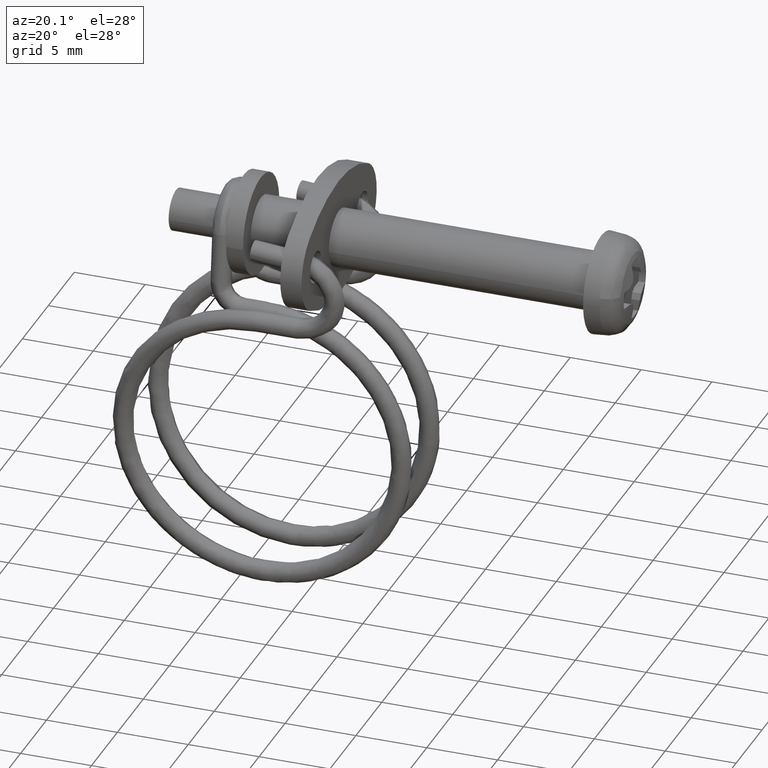
[diagram: clean part render]
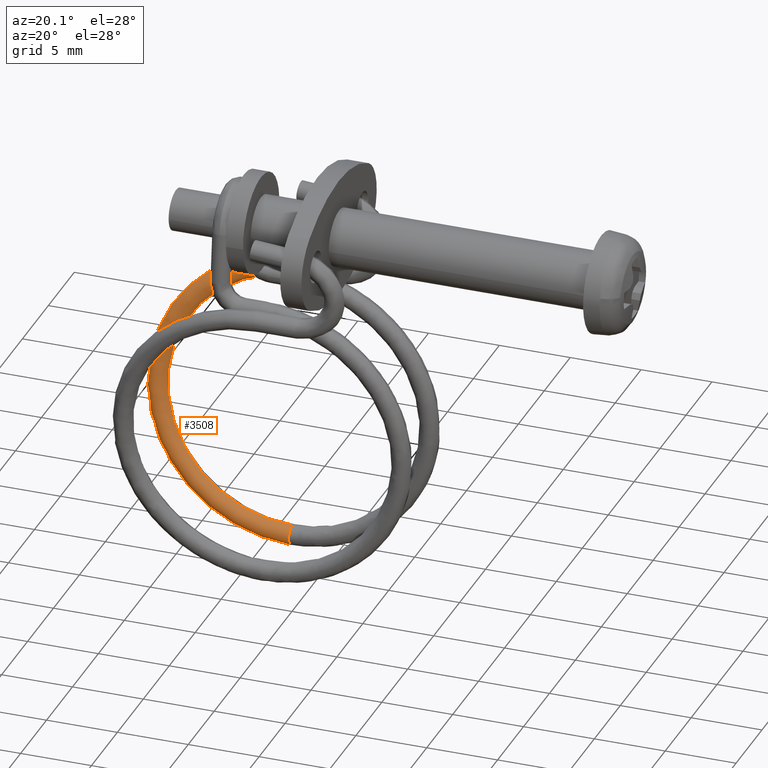
[diagram: same view with one face highlighted and labeled with its STEP entity id]
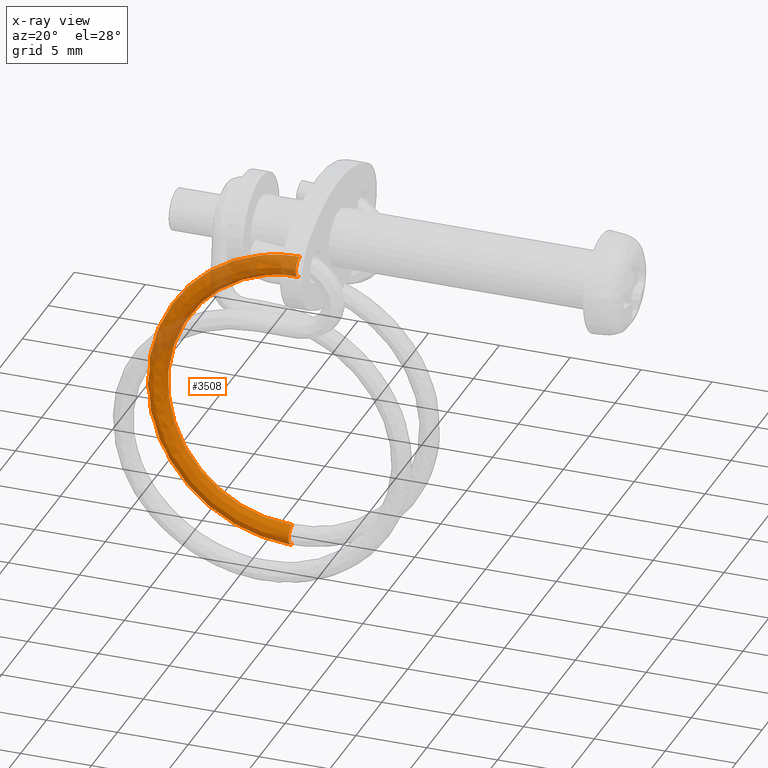
[diagram: x-ray of the same camera — body ghosted, the highlighted face saturated]
A machine part, auxiliary view. The second image highlights one B-rep face of the part: STEP entity #3508.
The next image is the same camera in x-ray: the body ghosted, the highlighted face saturated — about 25% of this face is hidden behind the body in this view.
In plain terms, the highlighted face is a freeform B-spline surface patch.
Its self-contained STEP definition (entity closure, byte-faithful):
#3210=CARTESIAN_POINT('',(-22.799999999961098,4.200507506892457,-4.357253119035725));
#3211=VERTEX_POINT('',#3210);
#3223=CARTESIAN_POINT('',(-22.799999999961098,3.414707688018117,-4.907394590690714));
#3224=VERTEX_POINT('',#3223);
#3225=CARTESIAN_POINT('',(-22.799999999961098,4.200507506892457,-4.357253119035725));
#3226=CARTESIAN_POINT('',(-22.799999999961098,4.019143087463241,-4.330939534108753));
#3227=CARTESIAN_POINT('',(-22.799999999961098,3.828062037694079,-4.379447157678442));
#3228=CARTESIAN_POINT('',(-22.799999999961098,3.545782875085731,-4.590185864396567));
#3229=CARTESIAN_POINT('',(-22.799999999961098,3.449508269579495,-4.742126870311785));
#3230=CARTESIAN_POINT('',(-22.799999999961098,3.414707688018117,-4.907394590690714));
#3231=B_SPLINE_CURVE_WITH_KNOTS('',3,(#3225,#3226,#3227,#3228,#3229,#3230),.UNSPECIFIED.,.F.,.U.,(4,2,4),(0.500000000000000,0.625000000000000,0.740274489874447),.UNSPECIFIED.);
#3232=EDGE_CURVE('',#3211,#3224,#3231,.T.);
#3264=CARTESIAN_POINT('',(-22.799999999961098,3.999492493146567,-5.742746880930215));
#3265=VERTEX_POINT('',#3264);
#3266=CARTESIAN_POINT('',(-22.799999999961098,3.414707688018117,-4.907394590690714));
#3267=CARTESIAN_POINT('',(-22.799999999961098,3.411772166697266,-4.921338058045257));
#3268=CARTESIAN_POINT('',(-22.799999999961098,3.409274218002913,-4.935376385066075));
#3269=CARTESIAN_POINT('',(-22.799999999961098,3.380917932652393,-5.130848489790246));
#3270=CARTESIAN_POINT('',(-22.799999999961098,3.429431455537967,-5.321925430378379));
#3271=CARTESIAN_POINT('',(-22.799999999961098,3.648711885636351,-5.615622146051384));
#3272=CARTESIAN_POINT('',(-22.799999999961098,3.818128500642891,-5.716433385892115));
#3273=CARTESIAN_POINT('',(-22.799999999961098,3.999492493146567,-5.742746880930215));
#3274=B_SPLINE_CURVE_WITH_KNOTS('',3,(#3266,#3267,#3268,#3269,#3270,#3271,#3272,#3273),.UNSPECIFIED.,.F.,.U.,(4,2,2,4),(0.740274489874447,0.750000000000000,0.875000000000000,1.0),.UNSPECIFIED.);
#3275=EDGE_CURVE('',#3224,#3265,#3274,.T.);
#3290=CARTESIAN_POINT('',(-22.472283195887300,2.721991249028009,-25.150000000016771));
#3291=CARTESIAN_POINT('',(-22.471662503735679,2.531395143268901,-25.155934153565429));
#3292=CARTESIAN_POINT('',(-22.473628578960572,2.339792722790783,-25.079742772446249));
#3293=CARTESIAN_POINT('',(-22.481353911746599,2.075441167506065,-24.815616350463600));
#3294=CARTESIAN_POINT('',(-22.492536922851780,1.924558832491999,-24.450000000016711));
#3295=CARTESIAN_POINT('',(-22.504406461654369,2.075441167506065,-24.084383649570309));
#3296=CARTESIAN_POINT('',(-22.513334617770131,2.339792747846161,-23.820257202521429));
#3297=CARTESIAN_POINT('',(-22.516172500812360,2.531395214513333,-23.744065818343302));
#3298=CARTESIAN_POINT('',(-22.516419036650468,2.721991355329128,-23.750000000016879));
#3299=CARTESIAN_POINT('',(-22.581522130580179,2.721991249028010,-25.150000000016739));
#3300=CARTESIAN_POINT('',(-22.581108335812431,2.531395143268902,-25.155934153565401));
#3301=CARTESIAN_POINT('',(-22.582419052629032,2.339792722790784,-25.079742772446220));
#3302=CARTESIAN_POINT('',(-22.587569274486381,2.075441167506066,-24.815616350463578));
#3303=CARTESIAN_POINT('',(-22.595024615223171,1.924558832492000,-24.450000000016679));
#3304=CARTESIAN_POINT('',(-22.602937641091572,2.075441167506066,-24.084383649570281));
#3305=CARTESIAN_POINT('',(-22.608889745168739,2.339792747846162,-23.820257202521400));
#3306=CARTESIAN_POINT('',(-22.610781667196900,2.531395214513334,-23.744065818343270));
#3307=CARTESIAN_POINT('',(-22.610946024422290,2.721991355329129,-23.750000000016851));
#3308=CARTESIAN_POINT('',(-22.690761065273069,2.721991249028011,-25.150000000016721));
#3309=CARTESIAN_POINT('',(-22.690554167889189,2.531395143268902,-25.155934153565379));
#3310=CARTESIAN_POINT('',(-22.691209526297492,2.339792722790786,-25.079742772446199));
#3311=CARTESIAN_POINT('',(-22.693784637226159,2.075441167506067,-24.815616350463550));
#3312=CARTESIAN_POINT('',(-22.697512307594561,1.924558832492000,-24.450000000016651));
#3313=CARTESIAN_POINT('',(-22.701468820528749,2.075441167506067,-24.084383649570260));
#3314=CARTESIAN_POINT('',(-22.704444872567340,2.339792747846164,-23.820257202521379));
#3315=CARTESIAN_POINT('',(-22.705390833581419,2.531395214513335,-23.744065818343248));
#3316=CARTESIAN_POINT('',(-22.705473012194119,2.721991355329130,-23.750000000016829));
#3317=CARTESIAN_POINT('',(-25.530972491796419,2.721991249028032,-25.150000000016099));
#3318=CARTESIAN_POINT('',(-25.536144924735069,2.531395143268923,-25.155934153564761));
#3319=CARTESIAN_POINT('',(-25.519760969779949,2.339792722790811,-25.079742772445520));
#3320=CARTESIAN_POINT('',(-25.455383217201231,2.075441167506093,-24.815616350462879));
#3321=CARTESIAN_POINT('',(-25.362191487866731,1.924558832492027,-24.450000000015969));
#3322=CARTESIAN_POINT('',(-25.263278696221018,2.075441167506093,-24.084383649569592));
#3323=CARTESIAN_POINT('',(-25.188877419107889,2.339792747846190,-23.820257202520750));
#3324=CARTESIAN_POINT('',(-25.165228401337320,2.531395214513355,-23.744065818342570));
#3325=CARTESIAN_POINT('',(-25.163173936678412,2.721991355329151,-23.750000000016151));
#3326=CARTESIAN_POINT('',(-28.229553618511989,2.802953258678004,-24.028097866186130));
#3327=CARTESIAN_POINT('',(-28.239830370471172,2.612510602908639,-24.031905641312910));
#3328=CARTESIAN_POINT('',(-28.207278214999270,2.420422121469724,-23.962449676344619));
#3329=CARTESIAN_POINT('',(-28.079370477449160,2.154160678595394,-23.724788839548019));
#3330=CARTESIAN_POINT('',(-27.894214227349948,2.000513634964158,-23.397483451368540));
#3331=CARTESIAN_POINT('',(-27.697691191221740,2.148461535243071,-23.072529982232702));
#3332=CARTESIAN_POINT('',(-27.549868400796989,2.410605861211967,-22.838989774346530));
#3333=CARTESIAN_POINT('',(-27.502881790706979,2.601506735111655,-22.772520461368249));
#3334=CARTESIAN_POINT('',(-27.498799915899021,2.792041926354235,-22.779299229984481));
#3335=CARTESIAN_POINT('',(-31.115472418381540,3.011292118425160,-21.141116523985271));
#3336=CARTESIAN_POINT('',(-31.131193555608188,2.821242501094478,-21.139477909307779));
#3337=CARTESIAN_POINT('',(-31.081396021793591,2.627909049610426,-21.087273672137911));
#3338=CARTESIAN_POINT('',(-30.885725726104258,2.356755724782712,-20.917400342385580));
#3339=CARTESIAN_POINT('',(-30.602477981284441,2.196027307219182,-20.688222564408601));
#3340=CARTESIAN_POINT('',(-30.301841590377041,2.336459106346524,-20.467420782687221));
#3341=CARTESIAN_POINT('',(-30.075705707870611,2.592949891296780,-20.312222500316171));
#3342=CARTESIAN_POINT('',(-30.003826679557580,2.782053743732373,-20.270654770492889));
#3343=CARTESIAN_POINT('',(-29.997582321977202,2.972432822060095,-20.279596818072850));
#3344=CARTESIAN_POINT('',(-31.885123592215660,3.094425583069462,-19.989124228211871));
#3345=CARTESIAN_POINT('',(-31.902294011846511,2.904532591565196,-19.985315227087639));
#3346=CARTESIAN_POINT('',(-31.847905799340680,2.710703019490560,-19.939985803807069));
#3347=CARTESIAN_POINT('',(-31.634197271877930,2.437600279598096,-19.797125797104432));
#3348=CARTESIAN_POINT('',(-31.324837804516552,2.274049934368091,-19.607051873935209));
#3349=CARTESIAN_POINT('',(-30.996486686234778,2.411486567021154,-19.427754541916759));
#3350=CARTESIAN_POINT('',(-30.749504044910069,2.665724415752754,-19.303775518583819));
#3351=CARTESIAN_POINT('',(-30.670998714083400,2.854112155094933,-19.272131070194270));
#3352=CARTESIAN_POINT('',(-30.664178708734479,3.044429022422742,-19.281935184484450));
#3353=CARTESIAN_POINT('',(-32.926695095413727,3.275948925452999,-17.473729340898078));
#3354=CARTESIAN_POINT('',(-32.945825437108489,3.086397505892081,-17.465187128556231));
#3355=CARTESIAN_POINT('',(-32.885229067802399,2.891485986616725,-17.434850402197331));
#3356=CARTESIAN_POINT('',(-32.647126724349391,2.614131933205952,-17.350901454244610));
#3357=CARTESIAN_POINT('',(-32.302455339348818,2.444427485933416,-17.246105802234670));
#3358=CARTESIAN_POINT('',(-31.936624496445571,2.575332214762285,-17.157321994641350));
#3359=CARTESIAN_POINT('',(-31.661449956670658,2.824656826506393,-17.101426398137029));
#3360=CARTESIAN_POINT('',(-31.573983614233970,3.011482855709504,-17.091422790246501));
#3361=CARTESIAN_POINT('',(-31.566385137580649,3.201664052359018,-17.103106912512619));
#3362=CARTESIAN_POINT('',(-33.196601484497457,3.373985776033773,-16.115218697143462));
#3363=CARTESIAN_POINT('',(-33.216238928851404,3.184618646024452,-16.104122758160539));
#3364=CARTESIAN_POINT('',(-33.154036285037968,2.989123379846643,-16.081875096025598));
#3365=CARTESIAN_POINT('',(-32.909622379871237,2.709475599813801,-16.029710645552552));
#3366=CARTESIAN_POINT('',(-32.555814525710232,2.536450807515661,-15.970925488902189));
#3367=CARTESIAN_POINT('',(-32.180286323642797,2.663831354551288,-15.930976771860660));
#3368=CARTESIAN_POINT('',(-31.897817520967141,2.910505109699927,-15.911814473899909));
#3369=CARTESIAN_POINT('',(-31.808032641008150,3.096488543759552,-15.913486827279479));
#3370=CARTESIAN_POINT('',(-31.800232745698811,3.286596541514808,-15.926185277076550));
#3371=CARTESIAN_POINT('',(-33.196601484497457,3.570276364391468,-13.395191972779140));
#3372=CARTESIAN_POINT('',(-33.216238928851404,3.381278201774908,-13.378983199922949));
#3373=CARTESIAN_POINT('',(-33.154036285037968,3.184614211860797,-13.372930709556270));
#3374=CARTESIAN_POINT('',(-32.909622379871237,2.900374145794925,-13.384402222681819));
#3375=CARTESIAN_POINT('',(-32.555814525710232,2.720701667612652,-13.417734998988090));
#3376=CARTESIAN_POINT('',(-32.180286323642797,2.841026425756352,-13.475559356609690));
#3377=CARTESIAN_POINT('',(-31.897817520967141,3.082392882464945,-13.529941051302560));
#3378=CARTESIAN_POINT('',(-31.808032641008150,3.266689350924684,-13.554989928001870));
#3379=CARTESIAN_POINT('',(-31.800232745698811,3.456650796665330,-13.569719170003570));
#3380=CARTESIAN_POINT('',(-32.926695095416271,3.668313214971959,-12.036681329022290));
#3381=CARTESIAN_POINT('',(-32.945825437111402,3.479499341906682,-12.017918829525810));
#3382=CARTESIAN_POINT('',(-32.885229067800587,3.282251605090125,-12.019955403380679));
#3383=CARTESIAN_POINT('',(-32.647126724348439,2.995717812402293,-12.063211413987030));
#3384=CARTESIAN_POINT('',(-32.302455339351432,2.812724989194852,-12.142554685650680));
#3385=CARTESIAN_POINT('',(-31.936624496442828,2.929525565544655,-12.249214133826261));
#3386=CARTESIAN_POINT('',(-31.661449956666559,3.168241165657883,-12.340329127061541));
#3387=CARTESIAN_POINT('',(-31.573983614232301,3.351695038974737,-12.377053965032140));
#3388=CARTESIAN_POINT('',(-31.566385137580038,3.541583285821080,-12.392797534565361));
#3389=CARTESIAN_POINT('',(-31.885123592209411,3.849836557355981,-9.521286441714148));
#3390=CARTESIAN_POINT('',(-31.902294011839899,3.661364256234672,-9.497790730998467));
#3391=CARTESIAN_POINT('',(-31.847905799338829,3.463034572217390,-9.514820001779819));
#3392=CARTESIAN_POINT('',(-31.634197271875198,3.172249466011024,-9.616987071133861));
#3393=CARTESIAN_POINT('',(-31.324837804510299,2.983102540760179,-9.781608613961149));
#3394=CARTESIAN_POINT('',(-30.996486686233808,3.093371213287107,-9.978781586557481));
#3395=CARTESIAN_POINT('',(-30.749504044910459,3.327173576412628,-10.137980006623639));
#3396=CARTESIAN_POINT('',(-30.670998714081371,3.509065739589217,-10.196345685090821));
#3397=CARTESIAN_POINT('',(-30.664178708731370,3.698818315757356,-10.213969262598919));
#3398=CARTESIAN_POINT('',(-31.115472418378939,3.932970022000480,-8.369294145941549));
#3399=CARTESIAN_POINT('',(-31.131193555609830,3.744654346705655,-8.343628048777097));
#3400=CARTESIAN_POINT('',(-31.081396021788041,3.545828542096894,-8.367532133450260));
#3401=CARTESIAN_POINT('',(-30.885725726099860,3.253094020825613,-8.496712525848503));
#3402=CARTESIAN_POINT('',(-30.602477981286640,3.061125167909828,-8.700437923493372));
#3403=CARTESIAN_POINT('',(-30.301841590372661,3.168398673961271,-8.939115345789009));
#3404=CARTESIAN_POINT('',(-30.075705707862859,3.399948100867401,-9.129533024890185));
#3405=CARTESIAN_POINT('',(-30.003826679547441,3.581124150952086,-9.197821984794738));
#3406=CARTESIAN_POINT('',(-29.997582321970949,3.770814516119887,-9.216307629013381));
#3407=CARTESIAN_POINT('',(-28.229553618507261,4.141308881746077,-5.482312803733266));
#3408=CARTESIAN_POINT('',(-28.239830370457920,3.953386244888805,-5.451200316773054));
#3409=CARTESIAN_POINT('',(-28.207278215000461,3.753315470237581,-5.492356129229943));
#3410=CARTESIAN_POINT('',(-28.079370477448069,3.455689067013756,-5.689324028692063));
#3411=CARTESIAN_POINT('',(-27.894214227335599,3.256638840162381,-5.991177036503627));
#3412=CARTESIAN_POINT('',(-27.697691191220638,3.356396245063892,-6.334006146231001));
#3413=CARTESIAN_POINT('',(-27.549868400802580,3.582292130953919,-6.602765750853356));
#3414=CARTESIAN_POINT('',(-27.502881790717289,3.761671159571770,-6.695956293905565));
#3415=CARTESIAN_POINT('',(-27.498799915901561,3.951205411825848,-6.716605217088507));
#3416=CARTESIAN_POINT('',(-25.530972491791541,4.222270891425314,-4.360410669911004));
#3417=CARTESIAN_POINT('',(-25.536144924736590,4.034501704558540,-4.327171804523231));
#3418=CARTESIAN_POINT('',(-25.519760969770619,3.833944868944734,-4.375063033140839));
#3419=CARTESIAN_POINT('',(-25.455383217193660,3.534408578130737,-4.598496517775983));
#3420=CARTESIAN_POINT('',(-25.362191487869080,3.332593642664391,-4.938660487878781));
#3421=CARTESIAN_POINT('',(-25.263278696213501,3.429416612829651,-5.322152478905255));
#3422=CARTESIAN_POINT('',(-25.188877419095320,3.653105244346787,-5.621498322686237));
#3423=CARTESIAN_POINT('',(-25.165228401321201,3.831782680198984,-5.724410936943245));
#3424=CARTESIAN_POINT('',(-25.163173936668159,4.021255982879088,-5.745904447068461));
#3425=CARTESIAN_POINT('',(-22.690761099941149,4.222270891425288,-4.360410669911350));
#3426=CARTESIAN_POINT('',(-22.690554202622689,4.034501704558515,-4.327171804523580));
#3427=CARTESIAN_POINT('',(-22.691209560823410,3.833944868944708,-4.375063033141189));
#3428=CARTESIAN_POINT('',(-22.693784670934662,3.534408578130710,-4.598496517776325));
#3429=CARTESIAN_POINT('',(-22.697512340119481,3.332593642664370,-4.938660487879112));
#3430=CARTESIAN_POINT('',(-22.701468851798250,3.429416612829626,-5.322152478905583));
#3431=CARTESIAN_POINT('',(-22.704444902892430,3.653105244346762,-5.621498322686561));
#3432=CARTESIAN_POINT('',(-22.705390863606400,3.831782680198966,-5.724410936943568));
#3433=CARTESIAN_POINT('',(-22.705473042192779,4.021255982879068,-5.745904447068783));
#3434=CARTESIAN_POINT('',(-22.581522199921199,4.222270891425287,-4.360410669911364));
#3435=CARTESIAN_POINT('',(-22.581108405284279,4.034501704558514,-4.327171804523593));
#3436=CARTESIAN_POINT('',(-22.582419121685710,3.833944868944706,-4.375063033141203));
#3437=CARTESIAN_POINT('',(-22.587569341908221,3.534408578130710,-4.598496517776338));
#3438=CARTESIAN_POINT('',(-22.595024680277859,3.332593642664368,-4.938660487879125));
#3439=CARTESIAN_POINT('',(-22.602937703635408,3.429416612829626,-5.322152478905595));
#3440=CARTESIAN_POINT('',(-22.608889805823772,3.653105244346761,-5.621498322686573));
#3441=CARTESIAN_POINT('',(-22.610781727251702,3.831782680198964,-5.724410936943579));
#3442=CARTESIAN_POINT('',(-22.610946084424459,4.021255982879067,-5.745904447068796));
#3443=CARTESIAN_POINT('',(-22.472283299901250,4.222270891425286,-4.360410669911377));
#3444=CARTESIAN_POINT('',(-22.471662607945870,4.034501704558513,-4.327171804523605));
#3445=CARTESIAN_POINT('',(-22.473628682548028,3.833944868944705,-4.375063033141215));
#3446=CARTESIAN_POINT('',(-22.481354012881781,3.534408578130708,-4.598496517776351));
#3447=CARTESIAN_POINT('',(-22.492537020436231,3.332593642664369,-4.938660487879139));
#3448=CARTESIAN_POINT('',(-22.504406555472581,3.429416612829623,-5.322152478905605));
#3449=CARTESIAN_POINT('',(-22.513334708755099,3.653105244346759,-5.621498322686586));
#3450=CARTESIAN_POINT('',(-22.516172590897000,3.831782680198964,-5.724410936943593));
#3451=CARTESIAN_POINT('',(-22.516419126656150,4.021255982879066,-5.745904447068808));
#3452=B_SPLINE_SURFACE_WITH_KNOTS('',3,3,((#3290,#3299,#3308,#3317,#3326,#3335,#3344,#3353,#3362,#3371,#3380,#3389,#3398,#3407,#3416,#3425,#3434,#3443),(#3291,#3300,#3309,#3318,#3327,#3336,#3345,#3354,#3363,#3372,#3381,#3390,#3399,#3408,#3417,#3426,#3435,#3444),(#3292,#3301,#3310,#3319,#3328,#3337,#3346,#3355,#3364,#3373,#3382,#3391,#3400,#3409,#3418,#3427,#3436,#3445),(#3293,#3302,#3311,#3320,#3329,#3338,#3347,#3356,#3365,#3374,#3383,#3392,#3401,#3410,#3419,#3428,#3437,#3446),(#3294,#3303,#3312,#3321,#3330,#3339,#3348,#3357,#3366,#3375,#3384,#3393,#3402,#3411,#3420,#3429,#3438,#3447),(#3295,#3304,#3313,#3322,#3331,#3340,#3349,#3358,#3367,#3376,#3385,#3394,#3403,#3412,#3421,#3430,#3439,#3448),(#3296,#3305,#3314,#3323,#3332,#3341,#3350,#3359,#3368,#3377,#3386,#3395,#3404,#3413,#3422,#3431,#3440,#3449),(#3297,#3306,#3315,#3324,#3333,#3342,#3351,#3360,#3369,#3378,#3387,#3396,#3405,#3414,#3423,#3432,#3441,#3450),(#3298,#3307,#3316,#3325,#3334,#3343,#3352,#3361,#3370,#3379,#3388,#3397,#3406,#3415,#3424,#3433,#3442,#3451)),.UNSPECIFIED.,.F.,.F.,.U.,(4,2,1,2,4),(4,2,2,2,2,2,2,2,4),(0.0,0.572285295552961,1.122559521522709,1.672833747492458,2.245119149442346),(0.0,0.327716804078659,8.520634279570238,12.617093017315961,16.713551755061680,20.810010492807539,24.906469230553260,33.099386706044662,33.427103406104507),.UNSPECIFIED.);
#3453=CARTESIAN_POINT('',(-22.799999895931261,2.699999999999000,-25.150000000016480));
#3454=VERTEX_POINT('',#3453);
#3455=CARTESIAN_POINT('',(-22.799999895931261,2.699999999999000,-25.150000000016480));
#3456=CARTESIAN_POINT('',(-25.531389417032148,2.699999999999020,-25.150000000016099));
#3457=CARTESIAN_POINT('',(-28.230381978644250,2.780974378523345,-24.027926468927880));
#3458=CARTESIAN_POINT('',(-31.116739624534230,2.989344919231026,-21.140506119130219));
#3459=CARTESIAN_POINT('',(-31.886507618134750,3.072491008738788,-19.988338878820770));
#3460=CARTESIAN_POINT('',(-32.928237101335462,3.254041883613253,-17.472562469846679));
#3461=CARTESIAN_POINT('',(-33.198184365554333,3.352093588898903,-16.113845982324801));
#3462=CARTESIAN_POINT('',(-33.198184365554333,3.548413917964495,-13.393407136722191));
#3463=CARTESIAN_POINT('',(-32.928237101337999,3.646465623249828,-12.034690649198140));
#3464=CARTESIAN_POINT('',(-31.886507618128501,3.828016498124844,-9.518914240229565));
#3465=CARTESIAN_POINT('',(-31.116739624532020,3.911162587632803,-8.366746999920721));
#3466=CARTESIAN_POINT('',(-28.230381978638729,4.119533128338826,-5.479326650116435));
#3467=CARTESIAN_POINT('',(-25.531389417027871,4.200507506892482,-4.357253119035392));
#3468=CARTESIAN_POINT('',(-22.799999999961098,4.200507506892457,-4.357253119035725));
#3469=B_SPLINE_CURVE_WITH_KNOTS('',3,(#3455,#3456,#3457,#3458,#3459,#3460,#3461,#3462,#3463,#3464,#3465,#3466,#3467,#3468),.UNSPECIFIED.,.F.,.U.,(4,2,2,2,2,2,4),(0.740190177905927,0.784525191294644,0.806692697989002,0.828860204683360,0.851027711377719,0.873195218072077,0.917530231460793),.UNSPECIFIED.);
#3470=EDGE_CURVE('',#3454,#3211,#3469,.T.);
#3471=ORIENTED_EDGE('',*,*,#3470,.F.);
#3472=CARTESIAN_POINT('',(-22.800000738930741,2.699999999998998,-23.750000000016460));
#3473=VERTEX_POINT('',#3472);
#3474=CARTESIAN_POINT('',(-22.799999895931261,2.699999999999000,-25.150000000016480));
#3475=CARTESIAN_POINT('',(-22.799999895931261,2.516740428539605,-25.150000000016480));
#3476=CARTESIAN_POINT('',(-22.799999941357591,2.334609338864722,-25.074558832543339));
#3477=CARTESIAN_POINT('',(-22.800000097413751,2.075441167472163,-24.815390661150769));
#3478=CARTESIAN_POINT('',(-22.800000207082629,1.999999999999036,-24.633259571475879));
#3479=CARTESIAN_POINT('',(-22.800000427779370,1.999999999999035,-24.266740428557050));
#3480=CARTESIAN_POINT('',(-22.800000537448241,2.075441167472162,-24.084609338882160));
#3481=CARTESIAN_POINT('',(-22.800000693504408,2.334609338864720,-23.825441167489590));
#3482=CARTESIAN_POINT('',(-22.800000738930741,2.516740428539602,-23.750000000016449));
#3483=CARTESIAN_POINT('',(-22.800000738930741,2.699999999998998,-23.750000000016460));
#3484=B_SPLINE_CURVE_WITH_KNOTS('',3,(#3474,#3475,#3476,#3477,#3478,#3479,#3480,#3481,#3482,#3483),.UNSPECIFIED.,.F.,.U.,(4,2,2,2,4),(0.500000000000000,0.625000000000000,0.750000000000000,0.875000000000000,1.0),.UNSPECIFIED.);
#3485=EDGE_CURVE('',#3454,#3473,#3484,.T.);
#3486=ORIENTED_EDGE('',*,*,#3485,.T.);
#3487=CARTESIAN_POINT('',(-22.800000738930741,2.699999999998998,-23.750000000016460));
#3488=CARTESIAN_POINT('',(-25.163590863929318,2.699999999999019,-23.750000000015959));
#3489=CARTESIAN_POINT('',(-27.499628280035250,2.770062939958244,-22.779127831897021));
#3490=CARTESIAN_POINT('',(-29.998849534255172,2.950485516777769,-20.278986410267350));
#3491=CARTESIAN_POINT('',(-30.665562741343681,3.022494342064902,-19.281149831297132));
#3492=CARTESIAN_POINT('',(-31.567927150955882,3.179756904625191,-17.101940035820562));
#3493=CARTESIAN_POINT('',(-31.801815634406911,3.264704248557662,-15.924812555622371));
#3494=CARTESIAN_POINT('',(-31.801815634406928,3.434788244559842,-13.567934325319010));
#3495=CARTESIAN_POINT('',(-31.567927150955182,3.519735588492272,-12.390806845118609));
#3496=CARTESIAN_POINT('',(-30.665562741340779,3.676998151052562,-10.211597049647560));
#3497=CARTESIAN_POINT('',(-29.998849534248620,3.749006976339612,-9.213760470680144));
#3498=CARTESIAN_POINT('',(-27.499628280038721,3.929429553159138,-6.713619049037220));
#3499=CARTESIAN_POINT('',(-25.163590863918628,3.999492493146587,-5.742746880929905));
#3500=CARTESIAN_POINT('',(-22.799999999961098,3.999492493146567,-5.742746880930215));
#3501=B_SPLINE_CURVE_WITH_KNOTS('',3,(#3487,#3488,#3489,#3490,#3491,#3492,#3493,#3494,#3495,#3496,#3497,#3498,#3499,#3500),.UNSPECIFIED.,.F.,.U.,(4,2,2,2,2,2,4),(0.740190177905927,0.784525191294644,0.806692697989002,0.828860204683360,0.851027711377719,0.873195218072077,0.917530231460793),.UNSPECIFIED.);
#3502=EDGE_CURVE('',#3473,#3265,#3501,.T.);
#3503=ORIENTED_EDGE('',*,*,#3502,.T.);
#3504=ORIENTED_EDGE('',*,*,#3275,.F.);
#3505=ORIENTED_EDGE('',*,*,#3232,.F.);
#3506=EDGE_LOOP('',(#3471,#3486,#3503,#3504,#3505));
#3507=FACE_OUTER_BOUND('',#3506,.T.);
#3508=ADVANCED_FACE('',(#3507),#3452,.T.);